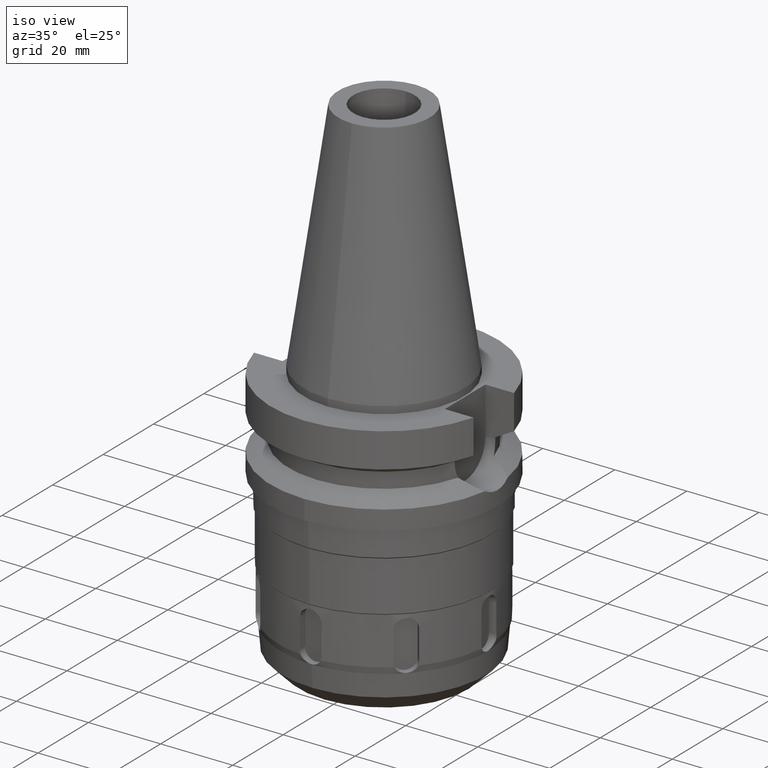
[diagram: clean part render]
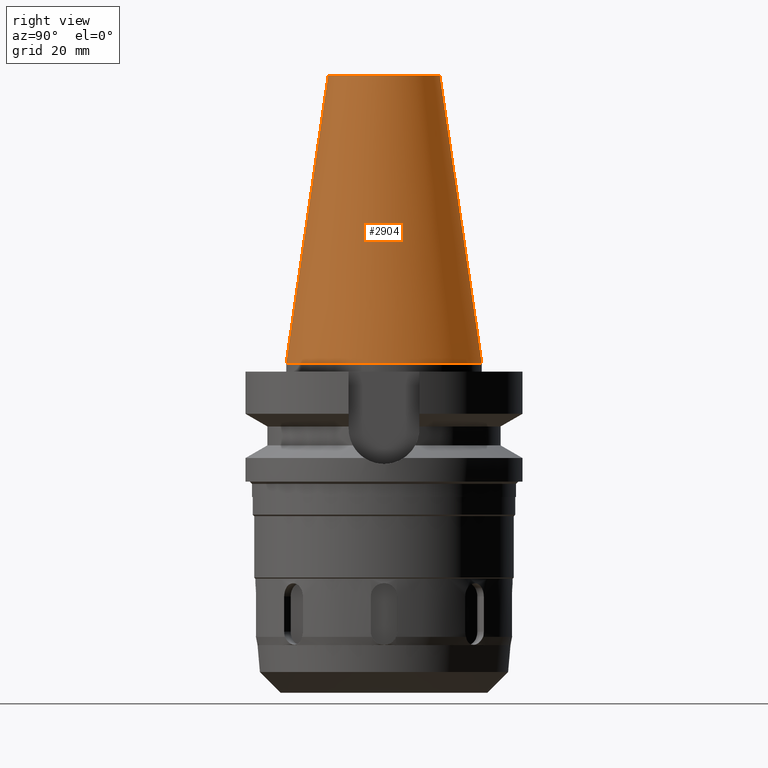
[diagram: tour spotlight — one face highlighted and labeled with its STEP entity id]
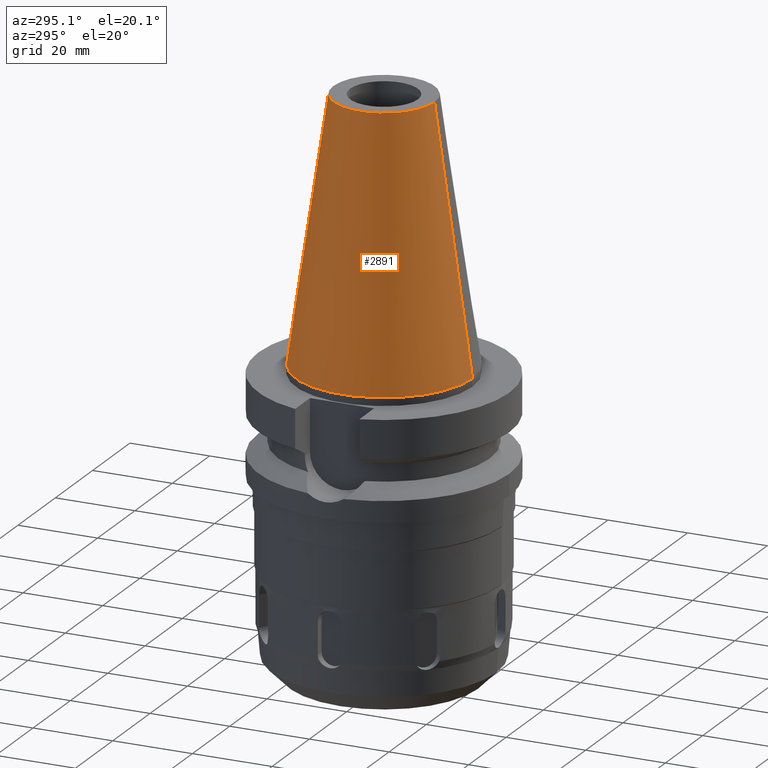
[diagram: tour spotlight — one face highlighted and labeled with its STEP entity id]
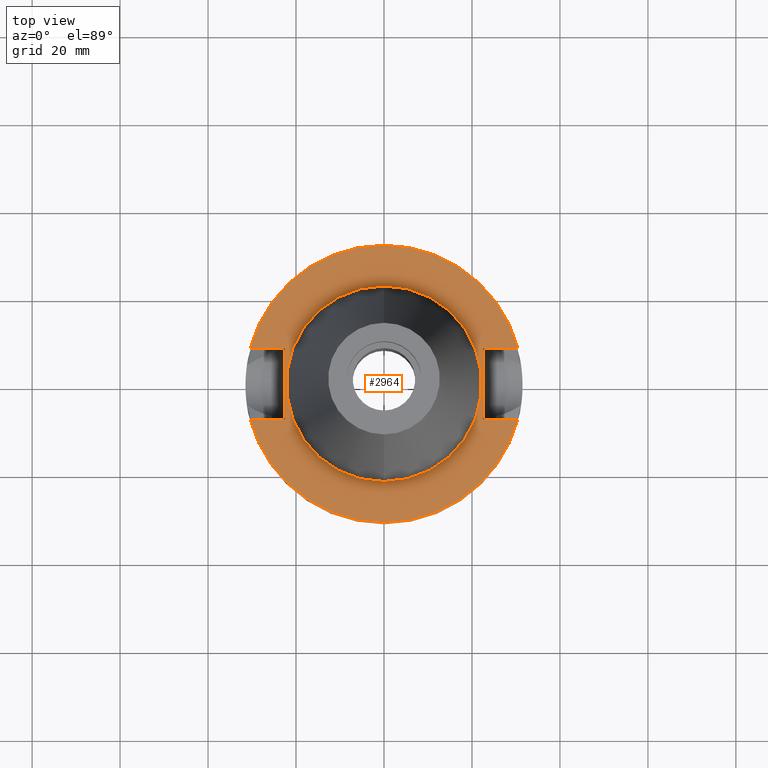
[diagram: tour spotlight — one face highlighted and labeled with its STEP entity id]
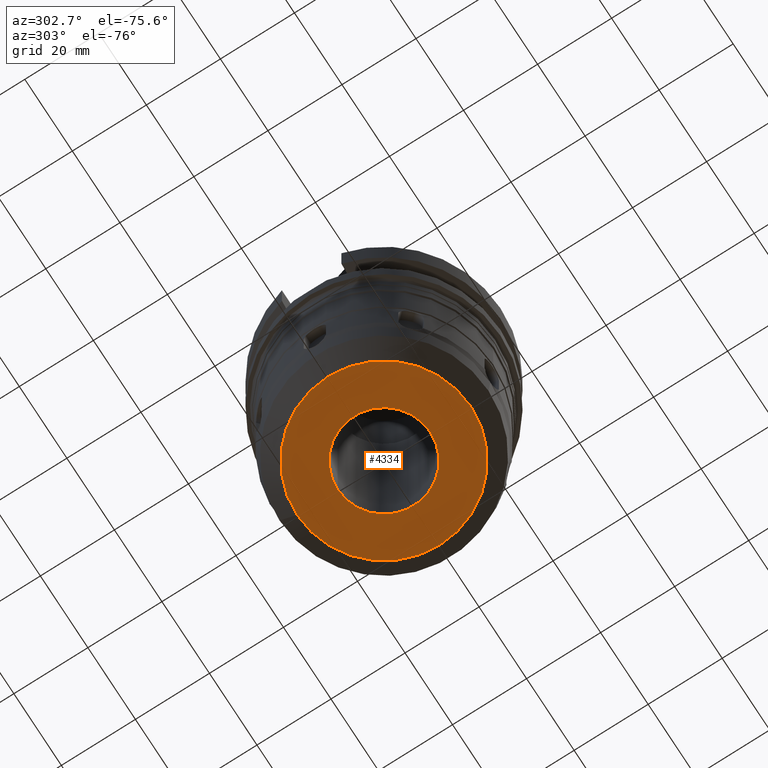
[diagram: tour spotlight — one face highlighted and labeled with its STEP entity id]
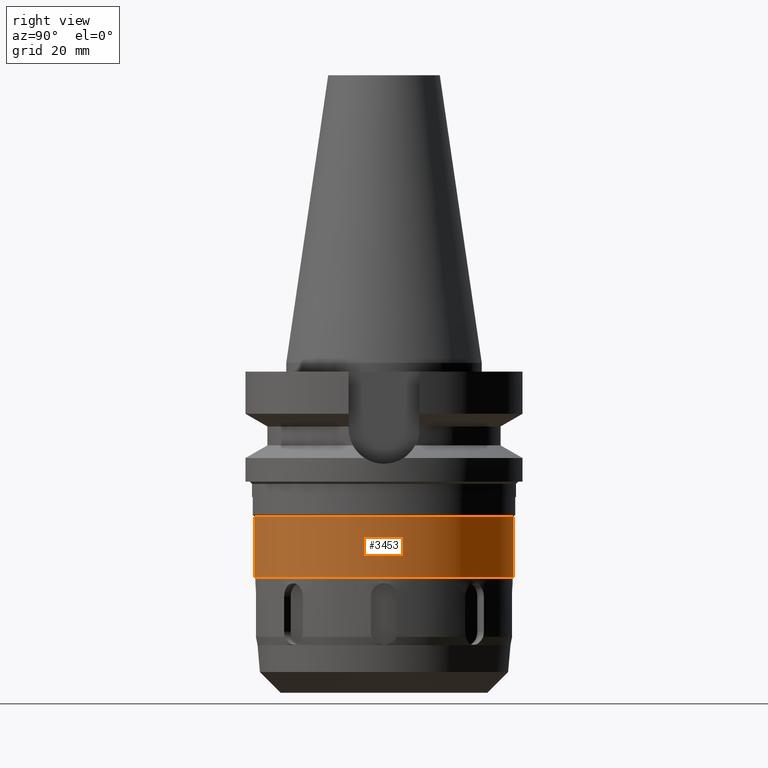
[diagram: tour spotlight — one face highlighted and labeled with its STEP entity id]
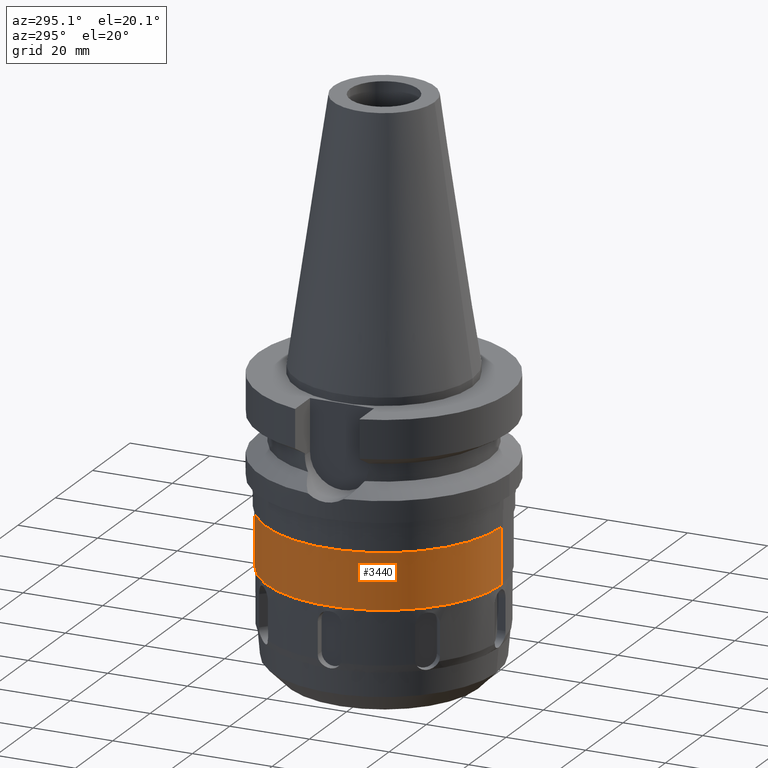
[diagram: tour spotlight — one face highlighted and labeled with its STEP entity id]
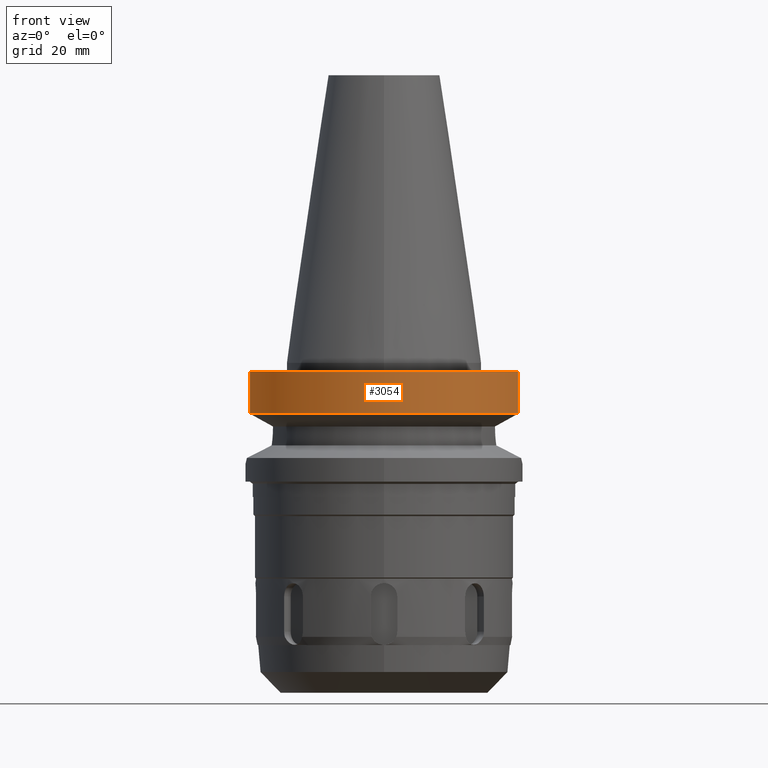
[diagram: tour spotlight — one face highlighted and labeled with its STEP entity id]
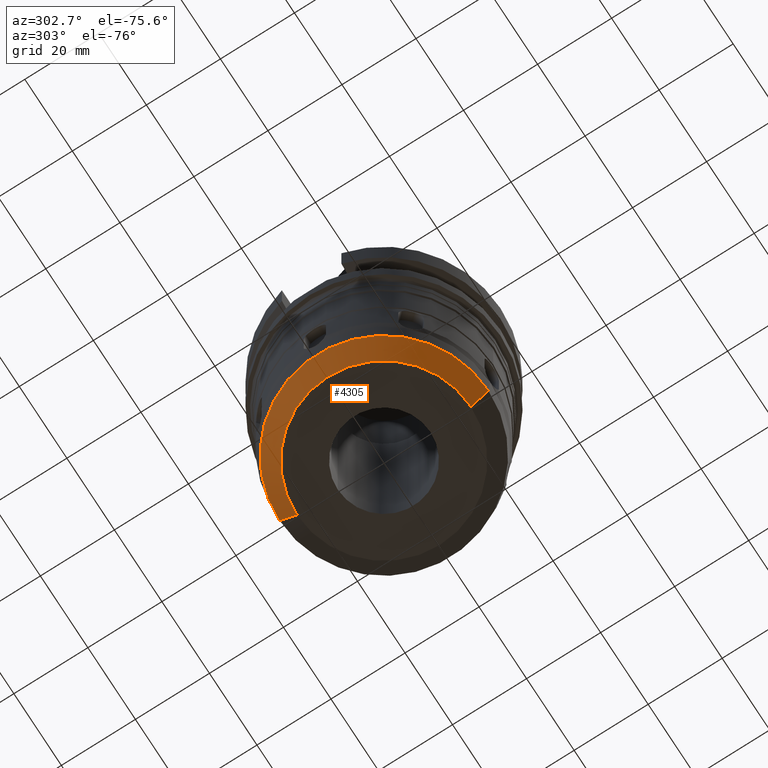
[diagram: tour spotlight — one face highlighted and labeled with its STEP entity id]
A machine part: a face-by-face anatomy tour. The part has 104 B-rep faces; the first image is the clean iso view, then the 8 largest visible faces are spotlighted one at a time (largest first), each with its STEP entity span.

Face 1 — right view, entity #2904. In plain terms, the highlighted conical surface has half-angle 8.297 deg.
Definition (entity closure, byte-faithful):
#26=CARTESIAN_POINT('',(0.E0,1.625106302469E-14,6.54E1));
#27=DIRECTION('',(0.E0,0.E0,-1.E0));
#28=DIRECTION('',(0.E0,1.E0,0.E0));
#29=AXIS2_PLACEMENT_3D('',#26,#27,#28);
#50=DIRECTION('',(0.E0,-1.443043893540E-1,-9.895333461856E-1));
#51=VECTOR('',#50,6.609175956738E1);
#52=CARTESIAN_POINT('',(0.E0,-1.268766899430E1,6.54E1));
#53=LINE('',#52,#51);
#65=DIRECTION('',(0.E0,1.443043893540E-1,-9.895333461856E-1));
#66=VECTOR('',#65,6.609175956738E1);
#67=CARTESIAN_POINT('',(0.E0,1.268766899430E1,6.54E1));
#68=LINE('',#67,#66);
#72=CARTESIAN_POINT('',(0.E0,1.625106302469E-14,2.842170943040E-14));
#73=DIRECTION('',(0.E0,0.E0,-1.E0));
#74=DIRECTION('',(0.E0,1.E0,0.E0));
#75=AXIS2_PLACEMENT_3D('',#72,#73,#74);
#2500=CARTESIAN_POINT('',(0.E0,-1.268766899430E1,6.54E1));
#2501=CARTESIAN_POINT('',(0.E0,1.268766899430E1,6.54E1));
#2502=VERTEX_POINT('',#2500);
#2503=VERTEX_POINT('',#2501);
#2781=CARTESIAN_POINT('',(0.E0,2.2225E1,6.394884621841E-14));
#2782=VERTEX_POINT('',#2781);
#2783=CARTESIAN_POINT('',(0.E0,-2.2225E1,6.394884621841E-14));
#2784=VERTEX_POINT('',#2783);
#2892=CARTESIAN_POINT('',(0.E0,1.625106302469E-14,3.27E1));
#2893=DIRECTION('',(0.E0,0.E0,-1.E0));
#2894=DIRECTION('',(0.E0,-1.E0,0.E0));
#2895=AXIS2_PLACEMENT_3D('',#2892,#2893,#2894);
#2896=CONICAL_SURFACE('',#2895,1.745633449715E1,8.297E0);
#2897=ORIENTED_EDGE('',*,*,#2882,.T.);
#2899=ORIENTED_EDGE('',*,*,#2898,.T.);
#2900=ORIENTED_EDGE('',*,*,#2885,.F.);
#2901=ORIENTED_EDGE('',*,*,#2866,.F.);
#2902=EDGE_LOOP('',(#2897,#2899,#2900,#2901));
#2903=FACE_OUTER_BOUND('',#2902,.F.);
#30=CIRCLE('',#29,1.268766899430E1);
#76=CIRCLE('',#75,2.2225E1);
#2866=EDGE_CURVE('',#2503,#2502,#30,.T.);
#2882=EDGE_CURVE('',#2503,#2782,#68,.T.);
#2885=EDGE_CURVE('',#2502,#2784,#53,.T.);
#2898=EDGE_CURVE('',#2782,#2784,#76,.T.);
#2904=ADVANCED_FACE('',(#2903),#2896,.T.);

Face 2 — auxiliary view, entity #2891. In plain terms, the highlighted conical surface has half-angle 8.297 deg.
Definition (entity closure, byte-faithful):
#17=CARTESIAN_POINT('',(0.E0,1.625106302469E-14,6.54E1));
#18=DIRECTION('',(0.E0,0.E0,-1.E0));
#19=DIRECTION('',(0.E0,-1.E0,0.E0));
#20=AXIS2_PLACEMENT_3D('',#17,#18,#19);
#50=DIRECTION('',(0.E0,-1.443043893540E-1,-9.895333461856E-1));
#51=VECTOR('',#50,6.609175956738E1);
#52=CARTESIAN_POINT('',(0.E0,-1.268766899430E1,6.54E1));
#53=LINE('',#52,#51);
#57=CARTESIAN_POINT('',(0.E0,1.625106302469E-14,2.842170943040E-14));
#58=DIRECTION('',(0.E0,0.E0,-1.E0));
#59=DIRECTION('',(0.E0,-1.E0,0.E0));
#60=AXIS2_PLACEMENT_3D('',#57,#58,#59);
#65=DIRECTION('',(0.E0,1.443043893540E-1,-9.895333461856E-1));
#66=VECTOR('',#65,6.609175956738E1);
#67=CARTESIAN_POINT('',(0.E0,1.268766899430E1,6.54E1));
#68=LINE('',#67,#66);
#2500=CARTESIAN_POINT('',(0.E0,-1.268766899430E1,6.54E1));
#2501=CARTESIAN_POINT('',(0.E0,1.268766899430E1,6.54E1));
#2502=VERTEX_POINT('',#2500);
#2503=VERTEX_POINT('',#2501);
#2781=CARTESIAN_POINT('',(0.E0,2.2225E1,6.394884621841E-14));
#2782=VERTEX_POINT('',#2781);
#2783=CARTESIAN_POINT('',(0.E0,-2.2225E1,6.394884621841E-14));
#2784=VERTEX_POINT('',#2783);
#2877=CARTESIAN_POINT('',(0.E0,1.625106302469E-14,3.27E1));
#2878=DIRECTION('',(0.E0,0.E0,-1.E0));
#2879=DIRECTION('',(0.E0,-1.E0,0.E0));
#2880=AXIS2_PLACEMENT_3D('',#2877,#2878,#2879);
#2881=CONICAL_SURFACE('',#2880,1.745633449715E1,8.297E0);
#2883=ORIENTED_EDGE('',*,*,#2882,.F.);
#2884=ORIENTED_EDGE('',*,*,#2864,.F.);
#2886=ORIENTED_EDGE('',*,*,#2885,.T.);
#2888=ORIENTED_EDGE('',*,*,#2887,.T.);
#2889=EDGE_LOOP('',(#2883,#2884,#2886,#2888));
#2890=FACE_OUTER_BOUND('',#2889,.F.);
#21=CIRCLE('',#20,1.268766899430E1);
#61=CIRCLE('',#60,2.2225E1);
#2864=EDGE_CURVE('',#2502,#2503,#21,.T.);
#2882=EDGE_CURVE('',#2503,#2782,#68,.T.);
#2885=EDGE_CURVE('',#2502,#2784,#53,.T.);
#2887=EDGE_CURVE('',#2784,#2782,#61,.T.);
#2891=ADVANCED_FACE('',(#2890),#2881,.T.);

Face 3 — top view, entity #2964. In plain terms, the highlighted planar face has unit normal (0, 0, -1).
Definition (entity closure, byte-faithful):
#94=DIRECTION('',(0.E0,1.E0,0.E0));
#95=VECTOR('',#94,1.61E1);
#96=CARTESIAN_POINT('',(-2.25E1,-8.05E0,-2.E0));
#97=LINE('',#96,#95);
#101=DIRECTION('',(-1.E0,-3.550916904668E-14,0.E0));
#102=VECTOR('',#101,7.954022722788E0);
#103=CARTESIAN_POINT('',(-2.25E1,8.05E0,-2.E0));
#104=LINE('',#103,#102);
#108=CARTESIAN_POINT('',(0.E0,2.111536011090E-14,-2.E0));
#109=DIRECTION('',(0.E0,0.E0,-1.E0));
#110=DIRECTION('',(-9.667943721520E-1,2.555555555556E-1,0.E0));
#111=AXIS2_PLACEMENT_3D('',#108,#109,#110);
#116=CARTESIAN_POINT('',(0.E0,2.111536011090E-14,-2.E0));
#117=DIRECTION('',(0.E0,0.E0,-1.E0));
#118=DIRECTION('',(0.E0,1.E0,0.E0));
#119=AXIS2_PLACEMENT_3D('',#116,#117,#118);
#124=DIRECTION('',(0.E0,-1.E0,0.E0));
#125=VECTOR('',#124,1.61E1);
#126=CARTESIAN_POINT('',(2.25E1,8.05E0,-2.E0));
#127=LINE('',#126,#125);
#131=DIRECTION('',(1.E0,3.573249715390E-14,0.E0));
#132=VECTOR('',#131,7.954022722788E0);
#133=CARTESIAN_POINT('',(2.25E1,-8.05E0,-2.E0));
#134=LINE('',#133,#132);
#138=CARTESIAN_POINT('',(0.E0,2.111536011090E-14,-2.E0));
#139=DIRECTION('',(0.E0,0.E0,-1.E0));
#140=DIRECTION('',(9.667943721520E-1,-2.555555555556E-1,0.E0));
#141=AXIS2_PLACEMENT_3D('',#138,#139,#140);
#146=CARTESIAN_POINT('',(0.E0,2.111536011090E-14,-2.E0));
#147=DIRECTION('',(0.E0,0.E0,-1.E0));
#148=DIRECTION('',(0.E0,-1.E0,0.E0));
#149=AXIS2_PLACEMENT_3D('',#146,#147,#148);
#154=CARTESIAN_POINT('',(0.E0,2.111536011090E-14,-2.E0));
#155=DIRECTION('',(0.E0,0.E0,1.E0));
#156=DIRECTION('',(0.E0,-1.E0,0.E0));
#157=AXIS2_PLACEMENT_3D('',#154,#155,#156);
#162=CARTESIAN_POINT('',(0.E0,2.111536011090E-14,-2.E0));
#163=DIRECTION('',(0.E0,0.E0,1.E0));
#164=DIRECTION('',(0.E0,1.E0,0.E0));
#165=AXIS2_PLACEMENT_3D('',#162,#163,#164);
#200=DIRECTION('',(-1.E0,3.550916904668E-14,0.E0));
#201=VECTOR('',#200,7.954022722788E0);
#202=CARTESIAN_POINT('',(-2.25E1,-8.05E0,-2.E0));
#203=LINE('',#202,#201);
#337=DIRECTION('',(1.E0,-3.506251283226E-14,0.E0));
#338=VECTOR('',#337,7.954022722788E0);
#339=CARTESIAN_POINT('',(2.25E1,8.05E0,-2.E0));
#340=LINE('',#339,#338);
#2755=CARTESIAN_POINT('',(-2.25E1,-8.05E0,-2.E0));
#2756=VERTEX_POINT('',#2755);
#2757=CARTESIAN_POINT('',(-3.045402272279E1,-8.05E0,-2.E0));
#2758=VERTEX_POINT('',#2757);
#2761=CARTESIAN_POINT('',(-2.25E1,8.05E0,-2.E0));
#2762=VERTEX_POINT('',#2761);
#2763=CARTESIAN_POINT('',(-3.045402272279E1,8.05E0,-2.E0));
#2764=VERTEX_POINT('',#2763);
#2765=CARTESIAN_POINT('',(-3.317447654708E-14,3.15E1,-2.E0));
#2766=CARTESIAN_POINT('',(3.045402272279E1,8.05E0,-2.E0));
#2767=VERTEX_POINT('',#2765);
#2768=VERTEX_POINT('',#2766);
#2769=CARTESIAN_POINT('',(2.25E1,8.05E0,-2.E0));
#2770=VERTEX_POINT('',#2769);
#2771=CARTESIAN_POINT('',(2.25E1,-8.05E0,-2.E0));
#2772=VERTEX_POINT('',#2771);
#2773=CARTESIAN_POINT('',(3.045402272279E1,-8.05E0,-2.E0));
#2774=VERTEX_POINT('',#2773);
#2775=CARTESIAN_POINT('',(3.317447654708E-14,-3.15E1,-2.E0));
#2776=VERTEX_POINT('',#2775);
#2777=CARTESIAN_POINT('',(0.E0,-2.2225E1,-2.E0));
#2778=CARTESIAN_POINT('',(0.E0,2.2225E1,-2.E0));
#2779=VERTEX_POINT('',#2777);
#2780=VERTEX_POINT('',#2778);
#2933=CARTESIAN_POINT('',(0.E0,1.200153863164E-14,-2.E0));
#2934=DIRECTION('',(0.E0,0.E0,-1.E0));
#2935=DIRECTION('',(0.E0,-1.E0,0.E0));
#2936=AXIS2_PLACEMENT_3D('',#2933,#2934,#2935);
#2937=PLANE('',#2936);
#2939=ORIENTED_EDGE('',*,*,#2938,.T.);
#2941=ORIENTED_EDGE('',*,*,#2940,.T.);
#2943=ORIENTED_EDGE('',*,*,#2942,.T.);
#2945=ORIENTED_EDGE('',*,*,#2944,.T.);
#2947=ORIENTED_EDGE('',*,*,#2946,.F.);
#2949=ORIENTED_EDGE('',*,*,#2948,.T.);
#2951=ORIENTED_EDGE('',*,*,#2950,.T.);
#2953=ORIENTED_EDGE('',*,*,#2952,.T.);
#2955=ORIENTED_EDGE('',*,*,#2954,.T.);
#2957=ORIENTED_EDGE('',*,*,#2956,.F.);
#2958=EDGE_LOOP('',(#2939,#2941,#2943,#2945,#2947,#2949,#2951,#2953,#2955,
#2957));
#2959=FACE_OUTER_BOUND('',#2958,.F.);
#2960=ORIENTED_EDGE('',*,*,#2912,.T.);
#2961=ORIENTED_EDGE('',*,*,#2928,.T.);
#2962=EDGE_LOOP('',(#2960,#2961));
#2963=FACE_BOUND('',#2962,.F.);
#112=CIRCLE('',#111,3.15E1);
#120=CIRCLE('',#119,3.15E1);
#142=CIRCLE('',#141,3.15E1);
#150=CIRCLE('',#149,3.15E1);
#158=CIRCLE('',#157,2.2225E1);
#166=CIRCLE('',#165,2.2225E1);
#2912=EDGE_CURVE('',#2779,#2780,#158,.T.);
#2928=EDGE_CURVE('',#2780,#2779,#166,.T.);
#2938=EDGE_CURVE('',#2756,#2762,#97,.T.);
#2940=EDGE_CURVE('',#2762,#2764,#104,.T.);
#2942=EDGE_CURVE('',#2764,#2767,#112,.T.);
#2944=EDGE_CURVE('',#2767,#2768,#120,.T.);
#2946=EDGE_CURVE('',#2770,#2768,#340,.T.);
#2948=EDGE_CURVE('',#2770,#2772,#127,.T.);
#2950=EDGE_CURVE('',#2772,#2774,#134,.T.);
#2952=EDGE_CURVE('',#2774,#2776,#142,.T.);
#2954=EDGE_CURVE('',#2776,#2758,#150,.T.);
#2956=EDGE_CURVE('',#2756,#2758,#203,.T.);
#2964=ADVANCED_FACE('',(#2959,#2963),#2937,.F.);

Face 4 — auxiliary view, entity #4334. In plain terms, the highlighted planar face has unit normal (0, 0, -1).
Definition (entity closure, byte-faithful):
#2178=CARTESIAN_POINT('',(0.E0,0.E0,-7.5E1));
#2179=DIRECTION('',(0.E0,0.E0,1.E0));
#2180=DIRECTION('',(0.E0,-1.E0,0.E0));
#2181=AXIS2_PLACEMENT_3D('',#2178,#2179,#2180);
#2186=CARTESIAN_POINT('',(0.E0,0.E0,-7.5E1));
#2187=DIRECTION('',(0.E0,0.E0,1.E0));
#2188=DIRECTION('',(0.E0,1.E0,0.E0));
#2189=AXIS2_PLACEMENT_3D('',#2186,#2187,#2188);
#2194=CARTESIAN_POINT('',(0.E0,2.111536011090E-14,-7.5E1));
#2195=DIRECTION('',(0.E0,0.E0,-1.E0));
#2196=DIRECTION('',(0.E0,-1.E0,0.E0));
#2197=AXIS2_PLACEMENT_3D('',#2194,#2195,#2196);
#2202=CARTESIAN_POINT('',(0.E0,2.111536011090E-14,-7.5E1));
#2203=DIRECTION('',(0.E0,0.E0,-1.E0));
#2204=DIRECTION('',(0.E0,1.E0,0.E0));
#2205=AXIS2_PLACEMENT_3D('',#2202,#2203,#2204);
#2548=CARTESIAN_POINT('',(0.E0,1.25E1,-7.5E1));
#2549=VERTEX_POINT('',#2548);
#2550=CARTESIAN_POINT('',(0.E0,-1.25E1,-7.5E1));
#2551=VERTEX_POINT('',#2550);
#2552=CARTESIAN_POINT('',(0.E0,-2.35E1,-7.5E1));
#2553=CARTESIAN_POINT('',(0.E0,2.35E1,-7.5E1));
#2554=VERTEX_POINT('',#2552);
#2555=VERTEX_POINT('',#2553);
#4319=CARTESIAN_POINT('',(0.E0,0.E0,-7.5E1));
#4320=DIRECTION('',(0.E0,0.E0,-1.E0));
#4321=DIRECTION('',(0.E0,-1.E0,0.E0));
#4322=AXIS2_PLACEMENT_3D('',#4319,#4320,#4321);
#4323=PLANE('',#4322);
#4324=ORIENTED_EDGE('',*,*,#4312,.T.);
#4325=ORIENTED_EDGE('',*,*,#4301,.T.);
#4326=EDGE_LOOP('',(#4324,#4325));
#4327=FACE_OUTER_BOUND('',#4326,.F.);
#4329=ORIENTED_EDGE('',*,*,#4328,.T.);
#4331=ORIENTED_EDGE('',*,*,#4330,.T.);
#4332=EDGE_LOOP('',(#4329,#4331));
#4333=FACE_BOUND('',#4332,.F.);
#2182=CIRCLE('',#2181,2.35E1);
#2190=CIRCLE('',#2189,2.35E1);
#2198=CIRCLE('',#2197,1.25E1);
#2206=CIRCLE('',#2205,1.25E1);
#4301=EDGE_CURVE('',#2555,#2554,#2190,.T.);
#4312=EDGE_CURVE('',#2554,#2555,#2182,.T.);
#4328=EDGE_CURVE('',#2551,#2549,#2198,.T.);
#4330=EDGE_CURVE('',#2549,#2551,#2206,.T.);
#4334=ADVANCED_FACE('',(#4327,#4333),#4323,.T.);

Face 5 — right view, entity #3453. In plain terms, the highlighted cylindrical surface (partial cylindrical patch) has radius 29.5 mm, axis along (0, 0, -1).
Definition (entity closure, byte-faithful):
#757=CARTESIAN_POINT('',(0.E0,0.E0,-3.485E1));
#758=DIRECTION('',(0.E0,0.E0,-1.E0));
#759=DIRECTION('',(0.E0,1.E0,0.E0));
#760=AXIS2_PLACEMENT_3D('',#757,#758,#759);
#796=DIRECTION('',(0.E0,0.E0,-1.E0));
#797=VECTOR('',#796,1.395E1);
#798=CARTESIAN_POINT('',(0.E0,-2.95E1,-3.485E1));
#799=LINE('',#798,#797);
#803=DIRECTION('',(0.E0,0.E0,-1.E0));
#804=VECTOR('',#803,1.395E1);
#805=CARTESIAN_POINT('',(0.E0,2.95E1,-3.485E1));
#806=LINE('',#805,#804);
#825=CARTESIAN_POINT('',(0.E0,0.E0,-4.88E1));
#826=DIRECTION('',(0.E0,0.E0,1.E0));
#827=DIRECTION('',(0.E0,-1.E0,0.E0));
#828=AXIS2_PLACEMENT_3D('',#825,#826,#827);
#2676=CARTESIAN_POINT('',(0.E0,2.95E1,-4.88E1));
#2677=VERTEX_POINT('',#2676);
#2678=CARTESIAN_POINT('',(0.E0,-2.95E1,-4.88E1));
#2679=VERTEX_POINT('',#2678);
#2680=CARTESIAN_POINT('',(0.E0,2.95E1,-3.485E1));
#2681=VERTEX_POINT('',#2680);
#2682=CARTESIAN_POINT('',(0.E0,-2.95E1,-3.485E1));
#2683=VERTEX_POINT('',#2682);
#3441=CARTESIAN_POINT('',(0.E0,2.111536011090E-14,7.242E1));
#3442=DIRECTION('',(0.E0,0.E0,-1.E0));
#3443=DIRECTION('',(0.E0,-1.E0,0.E0));
#3444=AXIS2_PLACEMENT_3D('',#3441,#3442,#3443);
#3445=CYLINDRICAL_SURFACE('',#3444,2.95E1);
#3446=ORIENTED_EDGE('',*,*,#3431,.T.);
#3448=ORIENTED_EDGE('',*,*,#3447,.F.);
#3449=ORIENTED_EDGE('',*,*,#3434,.F.);
#3450=ORIENTED_EDGE('',*,*,#3405,.F.);
#3451=EDGE_LOOP('',(#3446,#3448,#3449,#3450));
#3452=FACE_OUTER_BOUND('',#3451,.F.);
#761=CIRCLE('',#760,2.95E1);
#829=CIRCLE('',#828,2.95E1);
#3405=EDGE_CURVE('',#2681,#2683,#761,.T.);
#3431=EDGE_CURVE('',#2681,#2677,#806,.T.);
#3434=EDGE_CURVE('',#2683,#2679,#799,.T.);
#3447=EDGE_CURVE('',#2679,#2677,#829,.T.);
#3453=ADVANCED_FACE('',(#3452),#3445,.T.);

Face 6 — auxiliary view, entity #3440. In plain terms, the highlighted cylindrical surface (partial cylindrical patch) has radius 29.5 mm, axis along (0, 0, -1).
Definition (entity closure, byte-faithful):
#788=CARTESIAN_POINT('',(0.E0,0.E0,-3.485E1));
#789=DIRECTION('',(0.E0,0.E0,-1.E0));
#790=DIRECTION('',(0.E0,-1.E0,0.E0));
#791=AXIS2_PLACEMENT_3D('',#788,#789,#790);
#796=DIRECTION('',(0.E0,0.E0,-1.E0));
#797=VECTOR('',#796,1.395E1);
#798=CARTESIAN_POINT('',(0.E0,-2.95E1,-3.485E1));
#799=LINE('',#798,#797);
#803=DIRECTION('',(0.E0,0.E0,-1.E0));
#804=VECTOR('',#803,1.395E1);
#805=CARTESIAN_POINT('',(0.E0,2.95E1,-3.485E1));
#806=LINE('',#805,#804);
#833=CARTESIAN_POINT('',(0.E0,0.E0,-4.88E1));
#834=DIRECTION('',(0.E0,0.E0,1.E0));
#835=DIRECTION('',(0.E0,1.E0,0.E0));
#836=AXIS2_PLACEMENT_3D('',#833,#834,#835);
#2676=CARTESIAN_POINT('',(0.E0,2.95E1,-4.88E1));
#2677=VERTEX_POINT('',#2676);
#2678=CARTESIAN_POINT('',(0.E0,-2.95E1,-4.88E1));
#2679=VERTEX_POINT('',#2678);
#2680=CARTESIAN_POINT('',(0.E0,2.95E1,-3.485E1));
#2681=VERTEX_POINT('',#2680);
#2682=CARTESIAN_POINT('',(0.E0,-2.95E1,-3.485E1));
#2683=VERTEX_POINT('',#2682);
#3426=CARTESIAN_POINT('',(0.E0,2.111536011090E-14,7.242E1));
#3427=DIRECTION('',(0.E0,0.E0,-1.E0));
#3428=DIRECTION('',(0.E0,-1.E0,0.E0));
#3429=AXIS2_PLACEMENT_3D('',#3426,#3427,#3428);
#3430=CYLINDRICAL_SURFACE('',#3429,2.95E1);
#3432=ORIENTED_EDGE('',*,*,#3431,.F.);
#3433=ORIENTED_EDGE('',*,*,#3421,.F.);
#3435=ORIENTED_EDGE('',*,*,#3434,.T.);
#3437=ORIENTED_EDGE('',*,*,#3436,.F.);
#3438=EDGE_LOOP('',(#3432,#3433,#3435,#3437));
#3439=FACE_OUTER_BOUND('',#3438,.F.);
#792=CIRCLE('',#791,2.95E1);
#837=CIRCLE('',#836,2.95E1);
#3421=EDGE_CURVE('',#2683,#2681,#792,.T.);
#3431=EDGE_CURVE('',#2681,#2677,#806,.T.);
#3434=EDGE_CURVE('',#2683,#2679,#799,.T.);
#3436=EDGE_CURVE('',#2677,#2679,#837,.T.);
#3440=ADVANCED_FACE('',(#3439),#3430,.T.);

Face 7 — front view, entity #3054. In plain terms, the highlighted cylindrical surface (partial cylindrical patch) has radius 31.5 mm, axis along (0, 0, -1).
Definition (entity closure, byte-faithful):
#138=CARTESIAN_POINT('',(0.E0,2.111536011090E-14,-2.E0));
#139=DIRECTION('',(0.E0,0.E0,-1.E0));
#140=DIRECTION('',(9.667943721520E-1,-2.555555555556E-1,0.E0));
#141=AXIS2_PLACEMENT_3D('',#138,#139,#140);
#146=CARTESIAN_POINT('',(0.E0,2.111536011090E-14,-2.E0));
#147=DIRECTION('',(0.E0,0.E0,-1.E0));
#148=DIRECTION('',(0.E0,-1.E0,0.E0));
#149=AXIS2_PLACEMENT_3D('',#146,#147,#148);
#251=CARTESIAN_POINT('',(0.E0,1.065333950388E-14,-1.156550565267E1));
#252=DIRECTION('',(0.E0,0.E0,1.E0));
#253=DIRECTION('',(-9.667943721520E-1,-2.555555555555E-1,0.E0));
#254=AXIS2_PLACEMENT_3D('',#251,#252,#253);
#259=CARTESIAN_POINT('',(0.E0,1.065333950388E-14,-1.156550565267E1));
#260=DIRECTION('',(0.E0,0.E0,1.E0));
#261=DIRECTION('',(0.E0,-1.E0,0.E0));
#262=AXIS2_PLACEMENT_3D('',#259,#260,#261);
#283=DIRECTION('',(2.003365096741E-8,-7.578973472615E-8,1.E0));
#284=VECTOR('',#283,9.565512182300E0);
#285=CARTESIAN_POINT('',(-3.045402291442E1,-8.049999275032E0,
-1.156551218230E1));
#286=LINE('',#285,#284);
#290=DIRECTION('',(-1.147046578420E-7,-4.339395629113E-7,-9.999999999999E-1));
#291=VECTOR('',#290,9.565468263719E0);
#292=CARTESIAN_POINT('',(3.045402272279E1,-8.05E0,-2.E0));
#293=LINE('',#292,#291);
#2757=CARTESIAN_POINT('',(-3.045402272279E1,-8.05E0,-2.E0));
#2758=VERTEX_POINT('',#2757);
#2759=CARTESIAN_POINT('',(-3.045402291442E1,-8.049999275032E0,
-1.156551218230E1));
#2760=VERTEX_POINT('',#2759);
#2773=CARTESIAN_POINT('',(3.045402272279E1,-8.05E0,-2.E0));
#2774=VERTEX_POINT('',#2773);
#2775=CARTESIAN_POINT('',(3.317447654708E-14,-3.15E1,-2.E0));
#2776=VERTEX_POINT('',#2775);
#2786=CARTESIAN_POINT('',(0.E0,-3.15E1,-1.156550565267E1));
#2787=CARTESIAN_POINT('',(3.045402272279E1,-8.049999999999E0,
-1.156550565267E1));
#2788=VERTEX_POINT('',#2786);
#2789=VERTEX_POINT('',#2787);
#3040=CARTESIAN_POINT('',(0.E0,2.111536011090E-14,7.242E1));
#3041=DIRECTION('',(0.E0,0.E0,-1.E0));
#3042=DIRECTION('',(0.E0,-1.E0,0.E0));
#3043=AXIS2_PLACEMENT_3D('',#3040,#3041,#3042);
#3044=CYLINDRICAL_SURFACE('',#3043,3.15E1);
#3045=ORIENTED_EDGE('',*,*,#2993,.T.);
#3046=ORIENTED_EDGE('',*,*,#2954,.F.);
#3047=ORIENTED_EDGE('',*,*,#2952,.F.);
#3049=ORIENTED_EDGE('',*,*,#3048,.T.);
#3050=ORIENTED_EDGE('',*,*,#3031,.F.);
#3051=ORIENTED_EDGE('',*,*,#3029,.F.);
#3052=EDGE_LOOP('',(#3045,#3046,#3047,#3049,#3050,#3051));
#3053=FACE_OUTER_BOUND('',#3052,.F.);
#142=CIRCLE('',#141,3.15E1);
#150=CIRCLE('',#149,3.15E1);
#255=CIRCLE('',#254,3.15E1);
#263=CIRCLE('',#262,3.15E1);
#2952=EDGE_CURVE('',#2774,#2776,#142,.T.);
#2954=EDGE_CURVE('',#2776,#2758,#150,.T.);
#2993=EDGE_CURVE('',#2760,#2758,#286,.T.);
#3029=EDGE_CURVE('',#2760,#2788,#255,.T.);
#3031=EDGE_CURVE('',#2788,#2789,#263,.T.);
#3048=EDGE_CURVE('',#2774,#2789,#293,.T.);
#3054=ADVANCED_FACE('',(#3053),#3044,.T.);

Face 8 — auxiliary view, entity #4305. In plain terms, the highlighted conical surface has half-angle 45 deg.
Definition (entity closure, byte-faithful):
#2148=CARTESIAN_POINT('',(0.E0,0.E0,-7.0285E1));
#2149=DIRECTION('',(0.E0,0.E0,-1.E0));
#2150=DIRECTION('',(0.E0,-1.E0,0.E0));
#2151=AXIS2_PLACEMENT_3D('',#2148,#2149,#2150);
#2156=DIRECTION('',(0.E0,7.071067811867E-1,-7.071067811864E-1));
#2157=VECTOR('',#2156,6.668016946590E0);
#2158=CARTESIAN_POINT('',(0.E0,-2.8215E1,-7.0285E1));
#2159=LINE('',#2158,#2157);
#2163=DIRECTION('',(0.E0,-7.071067811867E-1,-7.071067811864E-1));
#2164=VECTOR('',#2163,6.668016946590E0);
#2165=CARTESIAN_POINT('',(0.E0,2.8215E1,-7.0285E1));
#2166=LINE('',#2165,#2164);
#2186=CARTESIAN_POINT('',(0.E0,0.E0,-7.5E1));
#2187=DIRECTION('',(0.E0,0.E0,1.E0));
#2188=DIRECTION('',(0.E0,1.E0,0.E0));
#2189=AXIS2_PLACEMENT_3D('',#2186,#2187,#2188);
#2552=CARTESIAN_POINT('',(0.E0,-2.35E1,-7.5E1));
#2553=CARTESIAN_POINT('',(0.E0,2.35E1,-7.5E1));
#2554=VERTEX_POINT('',#2552);
#2555=VERTEX_POINT('',#2553);
#2556=CARTESIAN_POINT('',(0.E0,2.8215E1,-7.0285E1));
#2557=VERTEX_POINT('',#2556);
#2558=CARTESIAN_POINT('',(0.E0,-2.8215E1,-7.0285E1));
#2559=VERTEX_POINT('',#2558);
#4291=CARTESIAN_POINT('',(0.E0,0.E0,-7.26425E1));
#4292=DIRECTION('',(0.E0,0.E0,1.E0));
#4293=DIRECTION('',(0.E0,1.E0,0.E0));
#4294=AXIS2_PLACEMENT_3D('',#4291,#4292,#4293);
#4295=CONICAL_SURFACE('',#4294,2.58575E1,4.5E1);
#4297=ORIENTED_EDGE('',*,*,#4296,.F.);
#4298=ORIENTED_EDGE('',*,*,#4286,.F.);
#4300=ORIENTED_EDGE('',*,*,#4299,.T.);
#4302=ORIENTED_EDGE('',*,*,#4301,.F.);
#4303=EDGE_LOOP('',(#4297,#4298,#4300,#4302));
#4304=FACE_OUTER_BOUND('',#4303,.F.);
#2152=CIRCLE('',#2151,2.8215E1);
#2190=CIRCLE('',#2189,2.35E1);
#4286=EDGE_CURVE('',#2559,#2557,#2152,.T.);
#4296=EDGE_CURVE('',#2557,#2555,#2166,.T.);
#4299=EDGE_CURVE('',#2559,#2554,#2159,.T.);
#4301=EDGE_CURVE('',#2555,#2554,#2190,.T.);
#4305=ADVANCED_FACE('',(#4304),#4295,.T.);